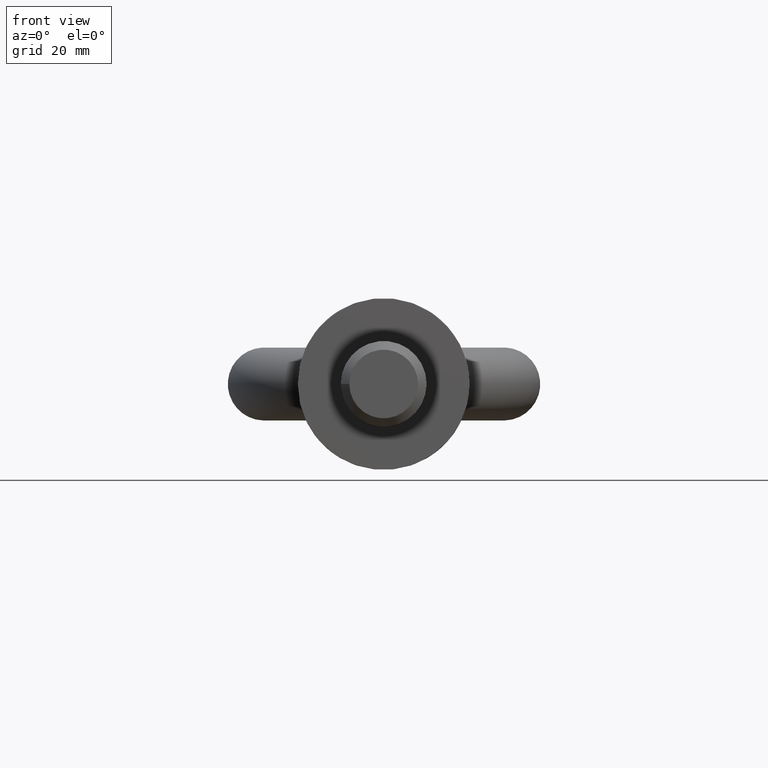
[diagram: clean part render]
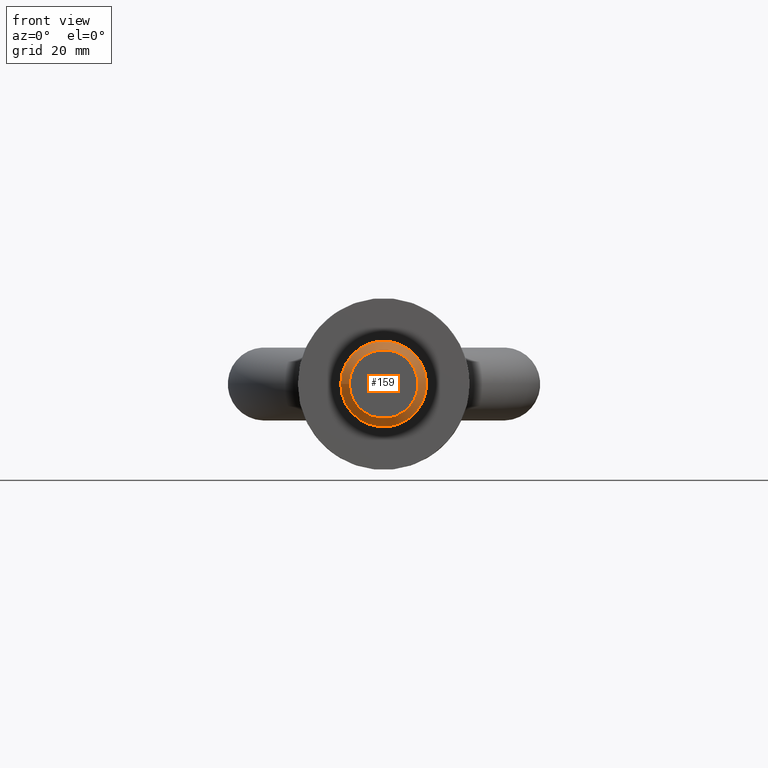
[diagram: same view with one face highlighted and labeled with its STEP entity id]
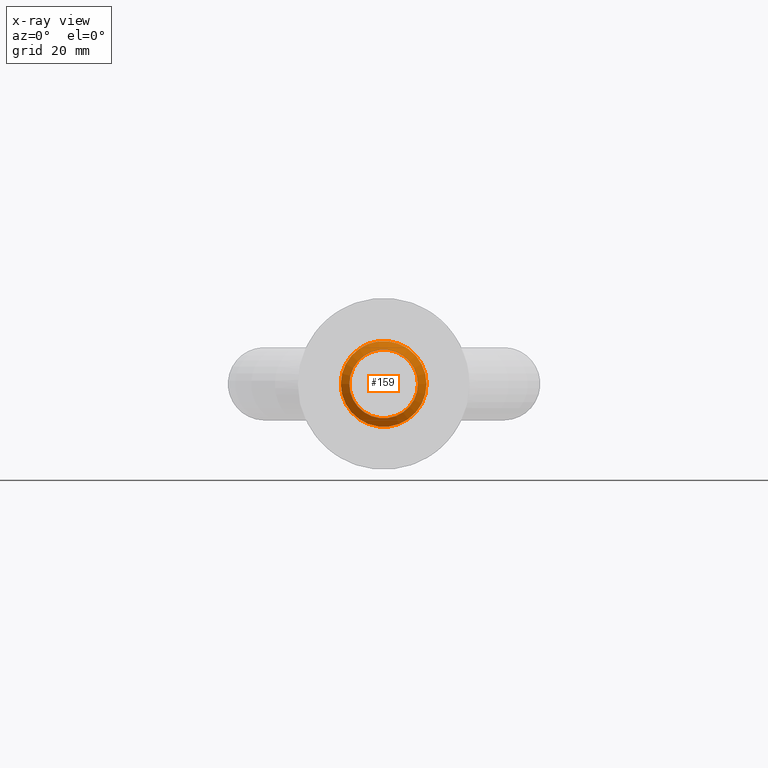
[diagram: x-ray of the same camera — body ghosted, the highlighted face saturated]
A machine part, front view. The second image highlights one B-rep face of the part: STEP entity #159.
The next image is the same camera in x-ray: the body ghosted, the highlighted face saturated — about 0% of this face is hidden behind the body in this view.
In plain terms, the highlighted conical surface has half-angle 45 deg.
Its self-contained STEP definition (entity closure, byte-faithful):
#78=CONICAL_SURFACE('',#632,10.,45.);
#88=FACE_BOUND('',#236,.T.);
#89=FACE_BOUND('',#237,.T.);
#159=ADVANCED_FACE('',(#88,#89),#78,.T.);
#236=EDGE_LOOP('',(#420));
#237=EDGE_LOOP('',(#421));
#420=ORIENTED_EDGE('',*,*,#498,.F.);
#421=ORIENTED_EDGE('',*,*,#499,.F.);
#446=VERTEX_POINT('',#1014);
#447=VERTEX_POINT('',#1017);
#498=EDGE_CURVE('',#446,#446,#543,.T.);
#499=EDGE_CURVE('',#447,#447,#544,.T.);
#543=CIRCLE('',#591,8.);
#544=CIRCLE('',#593,10.);
#591=AXIS2_PLACEMENT_3D('',#1013,#670,#671);
#593=AXIS2_PLACEMENT_3D('',#1016,#674,#675);
#632=AXIS2_PLACEMENT_3D('',#1403,#753,#754);
#670=DIRECTION('',(3.24990602193221E-18,-1.,0.));
#671=DIRECTION('',(-1.,0.,0.));
#674=DIRECTION('',(-3.2499060219322E-18,1.,0.));
#675=DIRECTION('',(-1.,0.,0.));
#753=DIRECTION('',(-3.2499060219322E-18,1.,0.));
#754=DIRECTION('',(-1.,-4.8091343888466E-17,0.));
#1013=CARTESIAN_POINT('',(2.74617058853272E-16,-59.,0.));
#1014=CARTESIAN_POINT('',(-8.,-59.,0.));
#1016=CARTESIAN_POINT('',(2.68117246809407E-16,-57.,0.));
#1017=CARTESIAN_POINT('',(-10.,-57.,0.));
#1403=CARTESIAN_POINT('',(2.68117246809407E-16,-57.,0.));